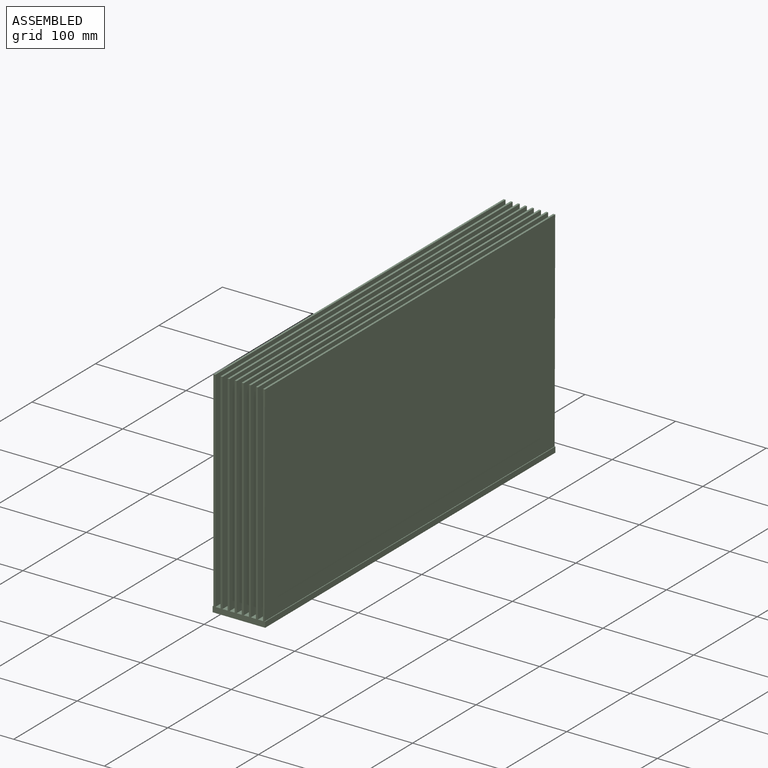
[diagram: assembled view]
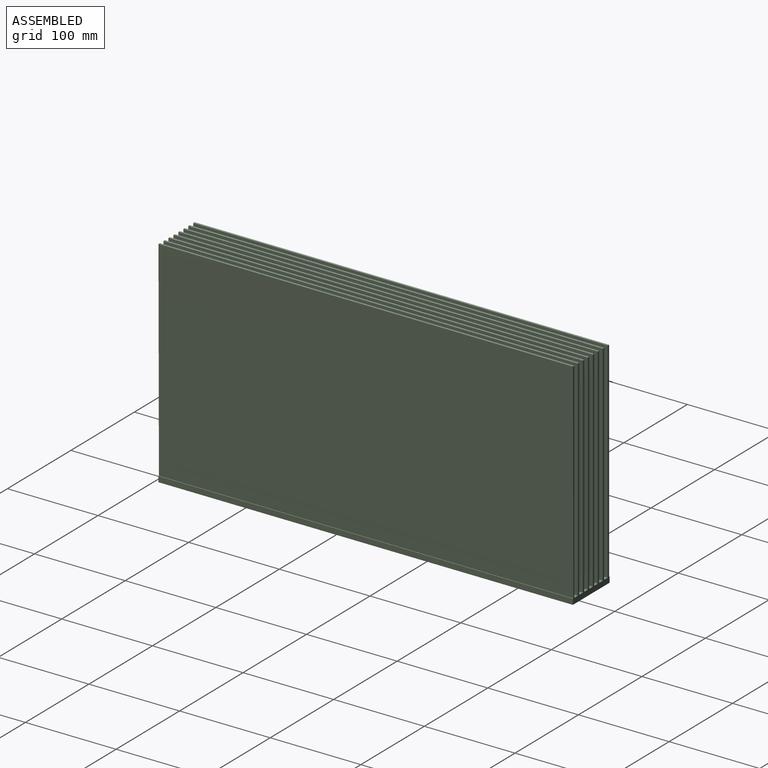
[diagram: assembled view, second angle]
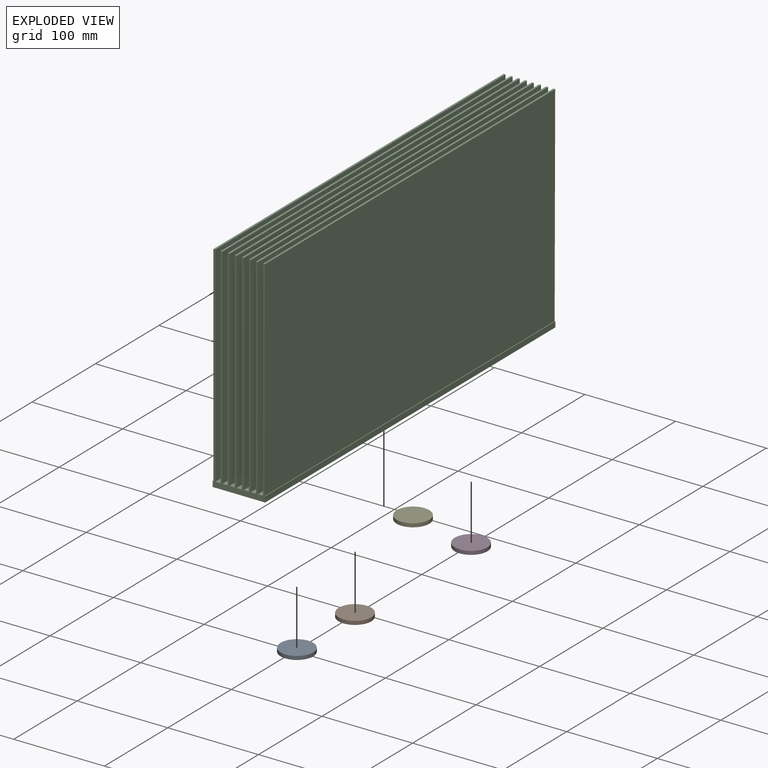
[diagram: exploded view]
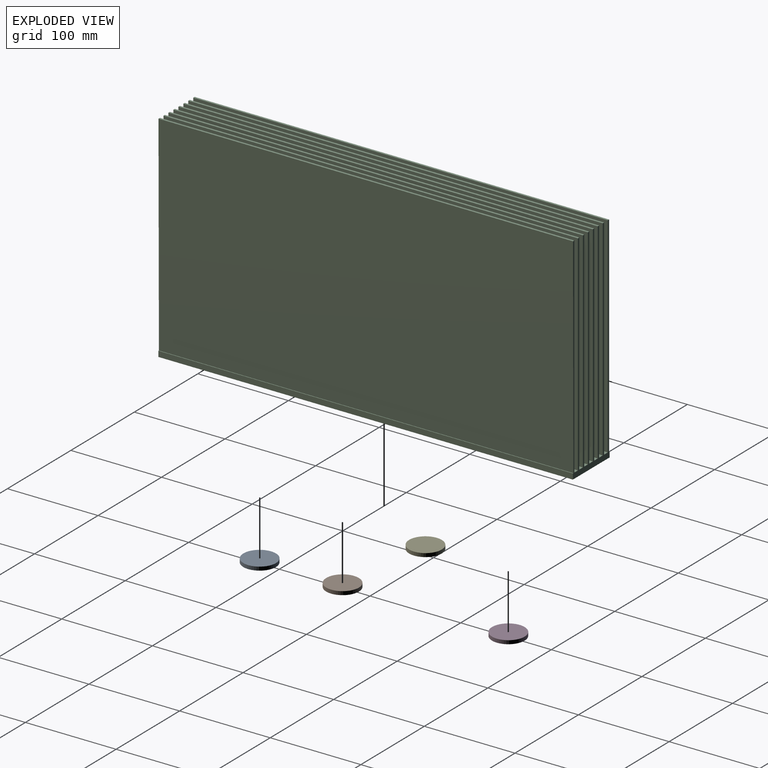
[diagram: exploded view, second angle]
ASSEMBLY  parts=5 mates=4
PART A: 3 faces, bbox 36x36x4 mm
  f0: cylinder r=18mm len=36mm, axis (0,0,-1), area 452.4mm2, adj f1,f2
  f1: plane 36x36mm, normal (0,0,1), area 1017.9mm2, adj f0
  f2: plane 36x36mm, normal (0,0,-1), area 1017.9mm2, adj f0
PART B: same geometry as A
PART C: 46 faces, bbox 57.9x457.2x237.5 mm
  f0: plane 457.2x6.11mm, normal (1,0,0), area 2791.7mm2, adj f1,f35,f36,f41
  f1: plane 457.2x0.81mm, normal (0,0,1), area 371.6mm2, adj f0,f2,f35,f36
  f2: plane 457.2x231.39mm, normal (1,0,0), area 105793.7mm2, adj f1,f3,f35,f36
  f3: plane 457.2x2.16mm, normal (0,0,1), area 987.1mm2, adj f2,f4,f35,f36
  f4: plane 457.2x231.39mm, normal (-1,0,0), area 105793.3mm2, adj f3,f5,f35,f36
  f5: plane 457.2x5.66mm, normal (0,0,1), area 2589.7mm2, adj f4,f6,f35,f36
  f6: plane 457.2x231.39mm, normal (1,0,0), area 105793.3mm2, adj f5,f7,f35,f36
  f7: plane 457.2x2.16mm, normal (0,0,1), area 987.1mm2, adj f6,f8,f35,f36
  f8: plane 457.2x231.39mm, normal (-1,0,0), area 105793.3mm2, adj f7,f9,f35,f36
  f9: plane 457.2x5.66mm, normal (0,0,1), area 2589.7mm2, adj f8,f10,f35,f36
  f10: plane 457.2x231.39mm, normal (1,0,0), area 105793.3mm2, adj f9,f11,f35,f36
  f11: plane 457.2x2.16mm, normal (0,0,1), area 987.1mm2, adj f10,f12,f35,f36
  f12: plane 457.2x231.39mm, normal (-1,0,0), area 105793.3mm2, adj f11,f13,f35,f36
  f13: plane 457.2x5.66mm, normal (0,0,1), area 2589.7mm2, adj f12,f14,f35,f36
  f14: plane 457.2x231.39mm, normal (1,0,0), area 105793.3mm2, adj f13,f15,f35,f36
  f15: plane 457.2x2.16mm, normal (0,0,1), area 987.1mm2, adj f14,f16,f35,f36
  f16: plane 457.2x231.39mm, normal (-1,0,0), area 105793.3mm2, adj f15,f17,f35,f36
  f17: plane 457.2x5.66mm, normal (0,0,1), area 2589.7mm2, adj f16,f18,f35,f36
  f18: plane 457.2x231.39mm, normal (1,0,0), area 105793.3mm2, adj f17,f19,f35,f36
  f19: plane 457.2x2.16mm, normal (0,0,1), area 987.1mm2, adj f18,f20,f35,f36
  f20: plane 457.2x231.39mm, normal (-1,0,0), area 105793.3mm2, adj f19,f21,f35,f36
  f21: plane 457.2x5.66mm, normal (0,0,1), area 2589.7mm2, adj f20,f22,f35,f36
  f22: plane 457.2x231.39mm, normal (1,0,0), area 105793.3mm2, adj f21,f23,f35,f36
  f23: plane 457.2x2.16mm, normal (0,0,1), area 987.1mm2, adj f22,f24,f35,f36
  f24: plane 457.2x231.39mm, normal (-1,0,0), area 105793.3mm2, adj f23,f25,f35,f36
  f25: plane 457.2x5.66mm, normal (0,0,1), area 2589.7mm2, adj f24,f26,f35,f36
  f26: plane 457.2x231.39mm, normal (1,0,0), area 105793.3mm2, adj f25,f27,f35,f36
  f27: plane 457.2x2.16mm, normal (0,0,1), area 987.1mm2, adj f26,f28,f35,f36
  f28: plane 457.2x231.39mm, normal (-1,0,0), area 105793.3mm2, adj f27,f29,f35,f36
  f29: plane 457.2x5.66mm, normal (0,0,1), area 2589.7mm2, adj f28,f30,f35,f36
  f30: plane 457.2x231.39mm, normal (1,0,0), area 105793.3mm2, adj f29,f31,f35,f36
  f31: plane 457.2x2.16mm, normal (0,0,1), area 987.1mm2, adj f30,f32,f35,f36
  f32: plane 457.2x231.39mm, normal (-1,0,0), area 105793.3mm2, adj f31,f33,f35,f36
  f33: plane 457.2x0.81mm, normal (0,0,1), area 371.6mm2, adj f32,f34,f35,f36
  f34: plane 457.2x6.11mm, normal (-1,0,0), area 2791.7mm2, adj f33,f35,f36,f41
  f35: plane 237.5x57.91mm, normal (0,-1,0), area 4276.8mm2, adj f0,f1,f2,f3,f4,f5,f6,f7
  f36: plane 237.5x57.91mm, normal (0,1,0), area 4276.8mm2, adj f0,f1,f2,f3,f4,f5,f6,f7
  f37: cylinder r=18.5mm len=37mm, axis (0,0,1), area 1.2mm2, adj f41,f45
  f38: cylinder r=18.5mm len=37mm, axis (0,0,1), area 1.2mm2, adj f41,f42
  f39: cylinder r=18.5mm len=37mm, axis (0,0,1), area 1.2mm2, adj f41,f43
  f40: cylinder r=18.5mm len=37mm, axis (0,0,1), area 1.2mm2, adj f41,f44
  f41: plane 457.2x57.91mm, normal (0,0,-1), area 22176.5mm2, adj f0,f34,f35,f36,f37,f38,f39,f40
  f42: plane 37x37mm, normal (0,0,-1), area 1075.2mm2, adj f38
  f43: plane 37x37mm, normal (0,0,-1), area 1075.2mm2, adj f39
  f44: plane 37x37mm, normal (0,0,-1), area 1075.2mm2, adj f40
  f45: plane 37x37mm, normal (0,0,-1), area 1075.2mm2, adj f37
PART D: same geometry as A
PART E: same geometry as A
PLACE A rot(axis=(0,1,0),180deg) t=(-188.2,-213.4,-70.12)mm
PLACE B t=(-188.2,-121.96,-74.12)mm
PLACE C t=(-188.2,152.36,-70.12)mm
PLACE D rot(axis=(1,0,0),180deg) t=(-188.2,60.92,-70.12)mm
PLACE E rot(axis=(1,0,0),180deg) t=(-188.2,-30.52,-70.12)mm
MATE fastened A.f0 <-> C.f40  axis (0,0,1) through (-188.2,-213.4,-70.12)mm
MATE fastened E.f0 <-> C.f38  axis (0,0,1) through (-188.2,-30.52,-70.12)mm
MATE fastened B.f0 <-> C.f39  axis (0,0,1) through (-188.2,-121.96,-70.12)mm
MATE fastened D.f0 <-> C.f37  axis (0,0,1) through (-188.2,60.92,-70.12)mm
